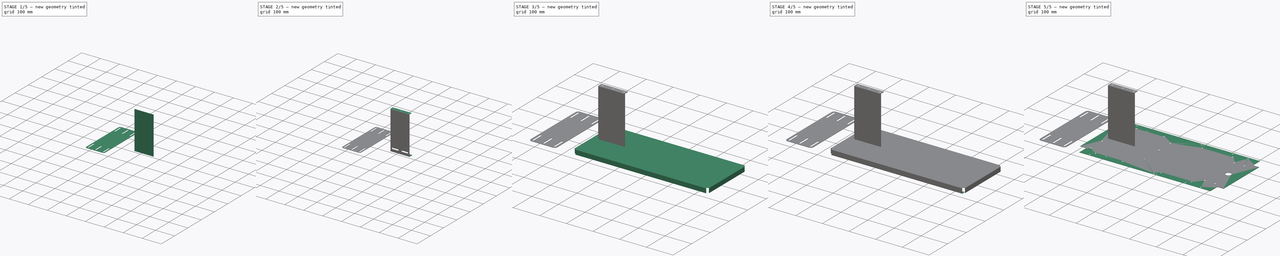
[diagram: build sequence overview — one tinted view per stage of 5, left to right]
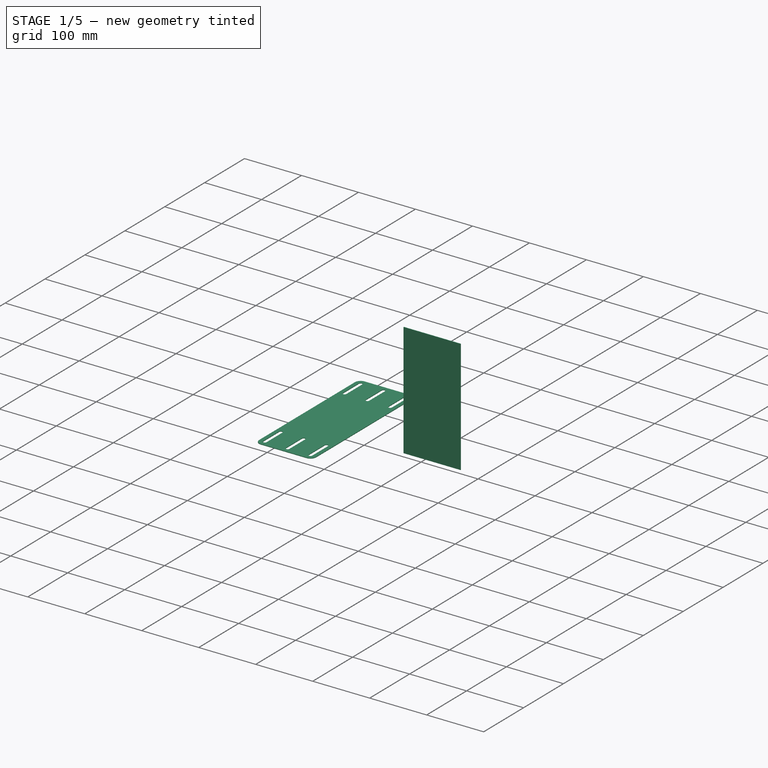
[diagram: stage 1 of 5 — iso view after this stage's code; geometry added in this stage tinted green]
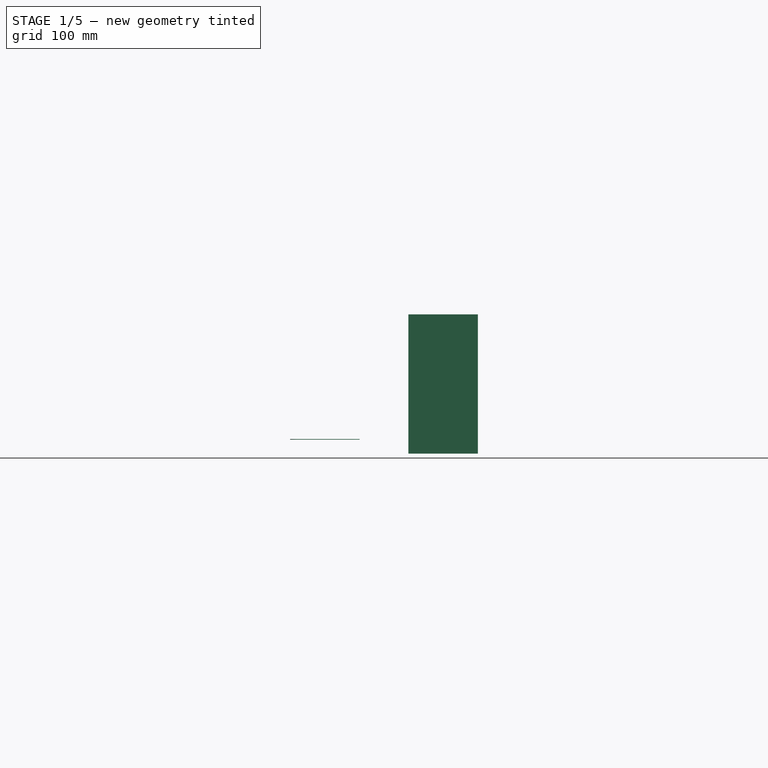
[diagram: stage 1 of 5 — front view after this stage's code; geometry added in this stage tinted green]
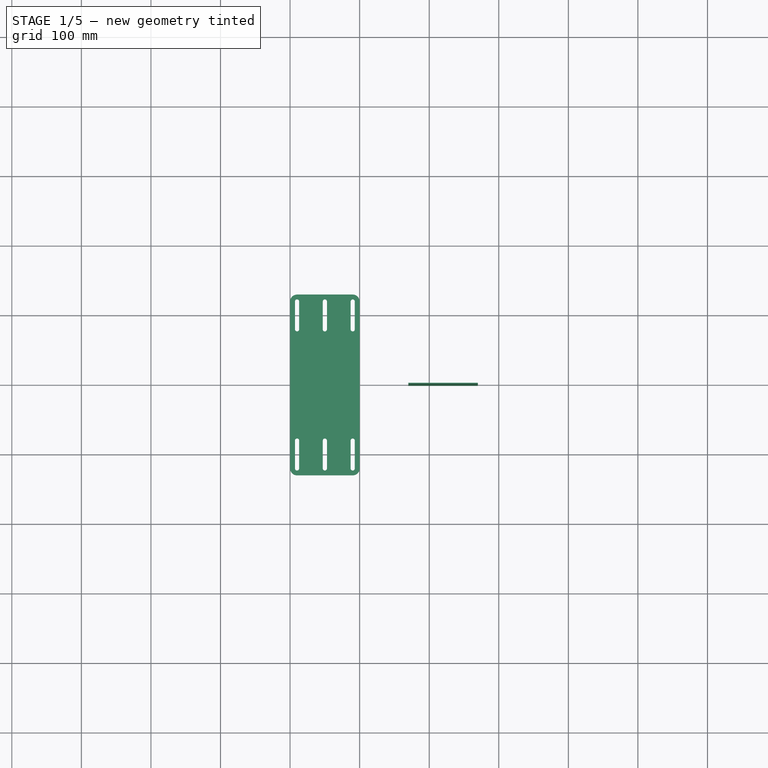
[diagram: stage 1 of 5 — top view after this stage's code; geometry added in this stage tinted green]
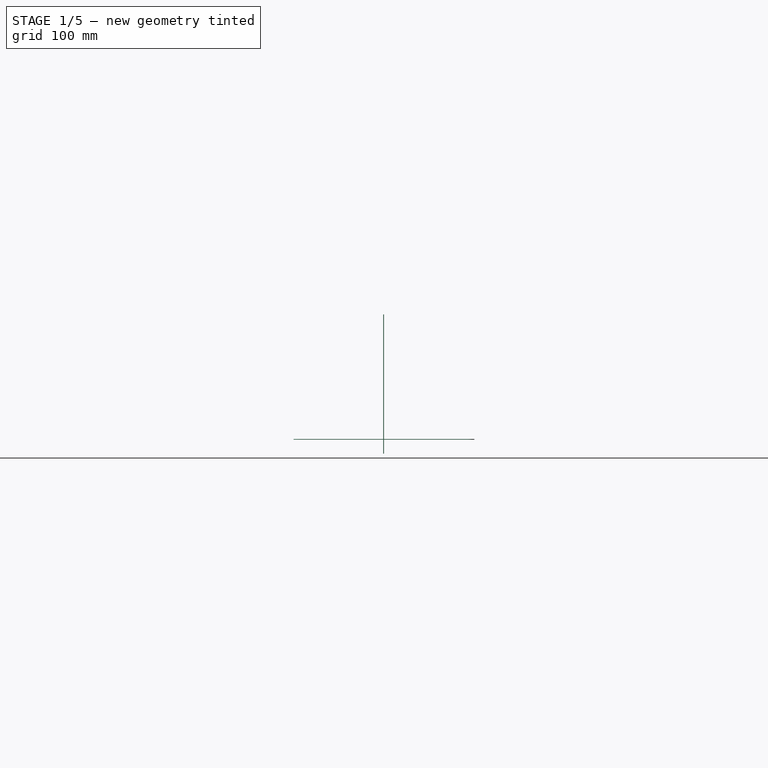
[diagram: stage 1 of 5 — right view after this stage's code; geometry added in this stage tinted green]
FCSTD DOCUMENT  (FreeCAD 1.0R38641 +678 (Git))
Label: support-mcdu-throttle
License: All rights reserved
LicenseURL: https://en.wikipedia.org/wiki/All_rights_reserved
objects: Sketcher::SketchObject×11, PartDesign::FeaturePython×9, PartDesign::Pocket×6, PartDesign::Body×3, PartDesign::Pad×2, Part::FeaturePython×1, PartDesign::Fillet×1
note: 71 computed .brp shape members not serialized (recipe doc carries the construction recipe); baked Part::Feature solids carry a one-line shape summary decoded from their .brp

FEATURE [Sketcher::SketchObject] Unfold_Sketch
  ArcFitTolerance = 1e-06
  FullyConstrained = false
  MakeInternals = false
  sketch-geometry (40):
    g0: LineSegment StartX=513.199 StartY=264.796 StartZ=0 EndX=513.199 EndY=252.796 EndZ=0
    g1: LineSegment StartX=513.199 StartY=252.796 StartZ=0 EndX=513.199 EndY=250.597 EndZ=0
    g2: LineSegment StartX=513.199 StartY=250.597 StartZ=0 EndX=513.199 EndY=234.597 EndZ=0
    g3: LineSegment StartX=513.199 StartY=234.597 StartZ=0 EndX=513.199 EndY=232.398 EndZ=0
    g4: LineSegment StartX=513.199 StartY=232.398 StartZ=0 EndX=513.494 EndY=232.398 EndZ=0
    g5: ArcOfCircle CenterX=519.377 CenterY=233.576 CenterZ=0 NormalX=0 NormalY=0 NormalZ=1 AngleXU=-2.94396 Radius=6 StartAngle=0 EndAngle=1.17553
    g6: LineSegment StartX=518.199 StartY=227.693 StartZ=0 EndX=518.199 EndY=227.398 EndZ=0
    g7: LineSegment StartX=518.199 StartY=227.398 StartZ=0 EndX=520.398 EndY=227.398 EndZ=0
    g8: LineSegment StartX=520.398 StartY=227.398 StartZ=0 EndX=536.398 EndY=227.398 EndZ=0
    g9: LineSegment StartX=536.398 StartY=227.398 StartZ=0 EndX=536.398 EndY=37.3982 EndZ=0
    g10: LineSegment StartX=536.398 StartY=37.3982 StartZ=0 EndX=520.398 EndY=37.3982 EndZ=0
    g11: LineSegment StartX=520.398 StartY=37.3982 StartZ=0 EndX=518.199 EndY=37.3982 EndZ=0
    g12: LineSegment StartX=518.199 StartY=37.3982 StartZ=0 EndX=518.199 EndY=37.1033 EndZ=0
    g13: ArcOfCircle CenterX=519.377 CenterY=31.2201 CenterZ=0 NormalX=0 NormalY=0 NormalZ=1 AngleXU=1.76843 Radius=6 StartAngle=0 EndAngle=1.17553
    g14: LineSegment StartX=513.494 StartY=32.3982 StartZ=0 EndX=513.199 EndY=32.3982 EndZ=0
    g15: LineSegment StartX=513.199 StartY=32.3982 StartZ=0 EndX=513.199 EndY=30.1991 EndZ=0
    g16: LineSegment StartX=513.199 StartY=30.1991 StartZ=0 EndX=513.199 EndY=14.1991 EndZ=0
    g17: LineSegment StartX=513.199 StartY=14.1991 StartZ=0 EndX=513.199 EndY=12 EndZ=0
    g18: LineSegment StartX=513.199 StartY=12 StartZ=0 EndX=513.199 EndY=3.6e-15 EndZ=0
    g19: LineSegment StartX=513.199 StartY=3.6e-15 StartZ=0 EndX=23.1991 EndY=3.6e-15 EndZ=0
    g20: LineSegment StartX=23.1991 StartY=3.6e-15 StartZ=0 EndX=23.1991 EndY=12 EndZ=0
    g21: LineSegment StartX=23.1991 StartY=12 StartZ=0 EndX=23.1991 EndY=14.1991 EndZ=0
    g22: LineSegment StartX=23.1991 StartY=14.1991 StartZ=0 EndX=23.1991 EndY=30.1991 EndZ=0
    g23: LineSegment StartX=23.1991 StartY=30.1991 StartZ=0 EndX=23.1991 EndY=32.3982 EndZ=0
    g24: LineSegment StartX=23.1991 StartY=32.3982 StartZ=0 EndX=22.9042 EndY=32.3982 EndZ=0
    g25: ArcOfCircle CenterX=17.021 CenterY=31.2201 CenterZ=0 NormalX=0 NormalY=0 NormalZ=1 AngleXU=0.197634 Radius=6 StartAngle=0 EndAngle=1.17553
    g26: LineSegment StartX=18.1991 StartY=37.1033 StartZ=0 EndX=18.1991 EndY=37.3982 EndZ=0
    g27: LineSegment StartX=18.1991 StartY=37.3982 StartZ=0 EndX=16 EndY=37.3982 EndZ=0
    g28: LineSegment StartX=16 StartY=37.3982 StartZ=0 EndX=-2.13e-14 EndY=37.3982 EndZ=0
    g29: LineSegment StartX=-2.13e-14 StartY=37.3982 StartZ=0 EndX=1.78e-14 EndY=227.398 EndZ=0
    g30: LineSegment StartX=1.78e-14 StartY=227.398 StartZ=0 EndX=16 EndY=227.398 EndZ=0
    g31: LineSegment StartX=16 StartY=227.398 StartZ=0 EndX=18.1991 EndY=227.398 EndZ=0
    g32: LineSegment StartX=18.1991 StartY=227.398 StartZ=0 EndX=18.1991 EndY=227.693 EndZ=0
    g33: ArcOfCircle CenterX=17.021 CenterY=233.576 CenterZ=0 NormalX=0 NormalY=0 NormalZ=1 AngleXU=-1.37316 Radius=6 StartAngle=0 EndAngle=1.17553
    g34: LineSegment StartX=22.9042 StartY=232.398 StartZ=0 EndX=23.1991 EndY=232.398 EndZ=0
    g35: LineSegment StartX=23.1991 StartY=232.398 StartZ=0 EndX=23.1991 EndY=234.597 EndZ=0
    g36: LineSegment StartX=23.1991 StartY=234.597 StartZ=0 EndX=23.1991 EndY=250.597 EndZ=0
    g37: LineSegment StartX=23.1991 StartY=250.597 StartZ=0 EndX=23.1991 EndY=252.796 EndZ=0
    g38: LineSegment StartX=23.1991 StartY=252.796 StartZ=0 EndX=23.1991 EndY=264.796 EndZ=0
    g39: LineSegment StartX=23.1991 StartY=264.796 StartZ=0 EndX=513.199 EndY=264.796 EndZ=0
FEATURE [Sketcher::SketchObject] Unfold_Sketch_Bends
  ArcFitTolerance = 1e-06
  FullyConstrained = false
  MakeInternals = false
  sketch-geometry (6):
    g0: LineSegment StartX=17.0996 StartY=227.398 StartZ=0 EndX=17.0996 EndY=37.3982 EndZ=0
    g1: LineSegment StartX=23.1991 StartY=31.2987 StartZ=0 EndX=513.199 EndY=31.2987 EndZ=0
    g2: LineSegment StartX=513.199 StartY=233.498 StartZ=0 EndX=23.1991 EndY=233.498 EndZ=0
    g3: LineSegment StartX=519.299 StartY=37.3982 StartZ=0 EndX=519.299 EndY=227.398 EndZ=0
    g4: LineSegment StartX=23.1991 StartY=13.0996 StartZ=0 EndX=513.199 EndY=13.0996 EndZ=0
    g5: LineSegment StartX=513.199 StartY=251.697 StartZ=0 EndX=23.1991 EndY=251.697 EndZ=0
FEATURE [Sketcher::SketchObject] Unfold_Sketch_Holes
  ArcFitTolerance = 1e-06
  FullyConstrained = false
  MakeInternals = false
  sketch-geometry (31):
    g0: Circle CenterX=488.199 CenterY=132.398 CenterZ=0 NormalX=0 NormalY=0 NormalZ=1 AngleXU=0 Radius=10
    g1: Circle CenterX=33.1991 CenterY=107.398 CenterZ=0 NormalX=0 NormalY=0 NormalZ=1 AngleXU=0 Radius=3.2
    g2: Circle CenterX=33.1991 CenterY=47.3982 CenterZ=0 NormalX=0 NormalY=0 NormalZ=1 AngleXU=0 Radius=3.2
    g3: Circle CenterX=493.199 CenterY=53.8982 CenterZ=0 NormalX=0 NormalY=0 NormalZ=1 AngleXU=0 Radius=3.2
    g4: Circle CenterX=455.199 CenterY=53.8982 CenterZ=0 NormalX=0 NormalY=0 NormalZ=1 AngleXU=0 Radius=3.2
    g5: Circle CenterX=213.199 CenterY=74.3982 CenterZ=0 NormalX=0 NormalY=0 NormalZ=1 AngleXU=0 Radius=3.2
    g6: Circle CenterX=33.1991 CenterY=187.398 CenterZ=0 NormalX=0 NormalY=0 NormalZ=1 AngleXU=0 Radius=3.2
    g7: Circle CenterX=493.199 CenterY=210.898 CenterZ=0 NormalX=0 NormalY=0 NormalZ=1 AngleXU=0 Radius=3.2
    g8: Circle CenterX=455.199 CenterY=210.898 CenterZ=0 NormalX=0 NormalY=0 NormalZ=1 AngleXU=0 Radius=3.2
    g9: Circle CenterX=213.199 CenterY=214.398 CenterZ=0 NormalX=0 NormalY=0 NormalZ=1 AngleXU=0 Radius=3.2
    g10: Circle CenterX=213.199 CenterY=154.398 CenterZ=0 NormalX=0 NormalY=0 NormalZ=1 AngleXU=0 Radius=3.2
    g11: Circle CenterX=473.199 CenterY=258.796 CenterZ=0 NormalX=0 NormalY=0 NormalZ=1 AngleXU=0 Radius=3
    g12: Circle CenterX=415.199 CenterY=258.796 CenterZ=0 NormalX=0 NormalY=0 NormalZ=1 AngleXU=0 Radius=3
    g13: Circle CenterX=308.199 CenterY=258.796 CenterZ=0 NormalX=0 NormalY=0 NormalZ=1 AngleXU=0 Radius=3
    g14: Circle CenterX=298.199 CenterY=258.796 CenterZ=0 NormalX=0 NormalY=0 NormalZ=1 AngleXU=0 Radius=3
    g15: Circle CenterX=58.1991 CenterY=258.796 CenterZ=0 NormalX=0 NormalY=0 NormalZ=1 AngleXU=0 Radius=3
    g16: Circle CenterX=473.199 CenterY=6 CenterZ=0 NormalX=0 NormalY=0 NormalZ=1 AngleXU=0 Radius=3
    g17: Circle CenterX=415.199 CenterY=6 CenterZ=0 NormalX=0 NormalY=0 NormalZ=1 AngleXU=0 Radius=3
    g18: Circle CenterX=308.199 CenterY=6 CenterZ=0 NormalX=0 NormalY=0 NormalZ=1 AngleXU=0 Radius=3
    g19: Circle CenterX=298.199 CenterY=6 CenterZ=0 NormalX=0 NormalY=0 NormalZ=1 AngleXU=0 Radius=3
    g20: Circle CenterX=58.1991 CenterY=6 CenterZ=0 NormalX=0 NormalY=0 NormalZ=1 AngleXU=0 Radius=3
    g21: Circle CenterX=68.1991 CenterY=242.597 CenterZ=0 NormalX=0 NormalY=0 NormalZ=1 AngleXU=0 Radius=3
    g22: Circle CenterX=108.199 CenterY=242.597 CenterZ=0 NormalX=0 NormalY=0 NormalZ=1 AngleXU=0 Radius=3
    g23: Circle CenterX=169.199 CenterY=242.597 CenterZ=0 NormalX=0 NormalY=0 NormalZ=1 AngleXU=0 Radius=3
    g24: Circle CenterX=313.199 CenterY=242.597 CenterZ=0 NormalX=0 NormalY=0 NormalZ=1 AngleXU=0 Radius=3
    g25: Circle CenterX=427.199 CenterY=242.597 CenterZ=0 NormalX=0 NormalY=0 NormalZ=1 AngleXU=0 Radius=3
    g26: Circle CenterX=427.199 CenterY=22.1991 CenterZ=0 NormalX=0 NormalY=0 NormalZ=1 AngleXU=0 Radius=3
    g27: Circle CenterX=313.199 CenterY=22.1991 CenterZ=0 NormalX=0 NormalY=0 NormalZ=1 AngleXU=0 Radius=3
    g28: Circle CenterX=169.199 CenterY=22.1991 CenterZ=0 NormalX=0 NormalY=0 NormalZ=1 AngleXU=0 Radius=3
    g29: Circle CenterX=108.199 CenterY=22.1991 CenterZ=0 NormalX=0 NormalY=0 NormalZ=1 AngleXU=0 Radius=3
    g30: Circle CenterX=68.1991 CenterY=22.1991 CenterZ=0 NormalX=0 NormalY=0 NormalZ=1 AngleXU=0 Radius=3
FEATURE [Sketcher::SketchObject] Sketch003
  ArcFitTolerance = 1e-06
  AttachmentSupport = -> [XZ_Plane001]
  FullyConstrained = true
  MakeInternals = false
  MapMode = 5
  Placement = pos=(0,0,0) rot=(1,0,0;1.5708rad)
  sketch-geometry (4):
    g0: LineSegment StartX=-230 StartY=-20 StartZ=0 EndX=-130 EndY=-20 EndZ=0
    g1: LineSegment StartX=-130 StartY=-20 StartZ=0 EndX=-130 EndY=180 EndZ=0
    g2: LineSegment StartX=-130 StartY=180 StartZ=0 EndX=-230 EndY=180 EndZ=0
    g3: LineSegment StartX=-230 StartY=180 StartZ=0 EndX=-230 EndY=-20 EndZ=0
  constraints (12):
    c: Coincident(g0,g1)
    c: Coincident(g1,g2)
    c: Coincident(g2,g3)
    c: Coincident(g3,g0)
    c: Horizontal(g0)
    c: Horizontal(g2)
    c: Vertical(g1)
    c: Vertical(g3)
    c: DistanceY(g3,g3) = 200
    c: DistanceX(g0,g0) = 100
    c: DistanceY(g0,g-1) = 20
    c: DistanceX(g0,g-1) = 230
FEATURE [PartDesign::Pad] Pad
  Direction = (0,-1,2e-16)
  Length = 1
  Length2 = 10
  Placement = pos=(0,0,0) rot=(1,0,0;1.5708rad)
  Profile = -> Sketch003
  ReferenceAxis = -> Sketch003 [N_Axis]
  Refine = true
  Suppressed = false
  Type = 0
FEATURE [PartDesign::Body] Body001  label="Suspend"
  AllowCompound = false
  Group = -> [Sketch003,Pad,Bend002,Bend003,Sketch004,Pocket003,Sketch005,Pocket004]
  Origin = -> Origin001
  Placement = pos=(0,-117,0) rot=(0,0,1;0rad)
  Tip = -> Pocket004
FEATURE [Sketcher::SketchObject] Sketch006
  ArcFitTolerance = 1e-06
  AttachmentSupport = -> [XY_Plane002]
  FullyConstrained = true
  MakeInternals = false
  MapMode = 5
  sketch-geometry (4):
    g0: LineSegment StartX=-400 StartY=-130 StartZ=0 EndX=-300 EndY=-130 EndZ=0
    g1: LineSegment StartX=-300 StartY=-130 StartZ=0 EndX=-300 EndY=130 EndZ=0
    g2: LineSegment StartX=-300 StartY=130 StartZ=0 EndX=-400 EndY=130 EndZ=0
    g3: LineSegment StartX=-400 StartY=130 StartZ=0 EndX=-400 EndY=-130 EndZ=0
  constraints (11):
    c: Coincident(g0,g1)
    c: Coincident(g1,g2)
    c: Coincident(g2,g3)
    c: Coincident(g3,g0)
    c: Horizontal(g0)
    c: Horizontal(g2)
    c: Vertical(g1)
    c: DistanceX(g0,g0) = 100
    c: DistanceY(g3,g3) = 260
    c: Symmetric(g0,g2,g-1)
    c: DistanceX(g0,g-1) = 300
FEATURE [PartDesign::Pad] Pad001
  Direction = (0,0,1)
  Length = 1
  Length2 = 10
  Profile = -> Sketch006
  ReferenceAxis = -> Sketch006 [N_Axis]
  Refine = true
  Suppressed = false
  Type = 0
FEATURE [Sketcher::SketchObject] Sketch007
  ArcFitTolerance = 1e-06
  AttachmentSupport = -> [Pad001]
  ExternalGeometry = -> [Pad001]
  FullyConstrained = true
  MakeInternals = false
  MapMode = 5
  Placement = pos=(0,0,1) rot=(0,0,1;0rad)
  sketch-geometry (29):
    g0: LineSegment [constr] StartX=-400 StartY=-120 StartZ=0 EndX=-300 EndY=-120 EndZ=0
    g1: LineSegment [constr] StartX=-400 StartY=-80 StartZ=0 EndX=-300 EndY=-80 EndZ=0
    g2: LineSegment [constr] StartX=-350 StartY=130 StartZ=0 EndX=-350 EndY=-130 EndZ=0
    g3: ArcOfCircle CenterX=-350 CenterY=-80 CenterZ=0 NormalX=0 NormalY=0 NormalZ=1 AngleXU=0 Radius=3 StartAngle=-9e-16 EndAngle=3.14159
    g4: ArcOfCircle CenterX=-350 CenterY=-120 CenterZ=0 NormalX=0 NormalY=0 NormalZ=1 AngleXU=0 Radius=3 StartAngle=3.14159 EndAngle=6.28319
    g5: LineSegment StartX=-347 StartY=-80 StartZ=0 EndX=-347 EndY=-120 EndZ=0
    g6: LineSegment StartX=-353 StartY=-80 StartZ=0 EndX=-353 EndY=-120 EndZ=0
    g7: ArcOfCircle CenterX=-390 CenterY=-80 CenterZ=0 NormalX=0 NormalY=0 NormalZ=1 AngleXU=0 Radius=3 StartAngle=-1.8e-15 EndAngle=3.14159
    g8: ArcOfCircle CenterX=-390 CenterY=-120 CenterZ=0 NormalX=0 NormalY=0 NormalZ=1 AngleXU=0 Radius=3 StartAngle=3.14159 EndAngle=6.28319
    g9: LineSegment StartX=-387 StartY=-80 StartZ=0 EndX=-387 EndY=-120 EndZ=0
    g10: LineSegment StartX=-393 StartY=-80 StartZ=0 EndX=-393 EndY=-120 EndZ=0
    g11: ArcOfCircle CenterX=-310 CenterY=-80 CenterZ=0 NormalX=0 NormalY=0 NormalZ=1 AngleXU=0 Radius=3 StartAngle=-1.8e-15 EndAngle=3.14159
    g12: ArcOfCircle CenterX=-310 CenterY=-120 CenterZ=0 NormalX=0 NormalY=0 NormalZ=1 AngleXU=0 Radius=3 StartAngle=3.14159 EndAngle=6.28319
    g13: LineSegment StartX=-307 StartY=-80 StartZ=0 EndX=-307 EndY=-120 EndZ=0
    g14: LineSegment StartX=-313 StartY=-80 StartZ=0 EndX=-313 EndY=-120 EndZ=0
    g15: LineSegment [constr] StartX=-400 StartY=120 StartZ=0 EndX=-300 EndY=120 EndZ=0
    g16: LineSegment [constr] StartX=-400 StartY=80 StartZ=0 EndX=-300 EndY=80 EndZ=0
    g17: ArcOfCircle CenterX=-350 CenterY=120 CenterZ=0 NormalX=0 NormalY=0 NormalZ=1 AngleXU=0 Radius=3 StartAngle=-1.8e-15 EndAngle=3.14159
    g18: ArcOfCircle CenterX=-350 CenterY=80 CenterZ=0 NormalX=0 NormalY=0 NormalZ=1 AngleXU=0 Radius=3 StartAngle=3.14159 EndAngle=6.28319
    g19: LineSegment StartX=-347 StartY=120 StartZ=0 EndX=-347 EndY=80 EndZ=0
    g20: LineSegment StartX=-353 StartY=120 StartZ=0 EndX=-353 EndY=80 EndZ=0
    g21: ArcOfCircle CenterX=-390 CenterY=120 CenterZ=0 NormalX=0 NormalY=0 NormalZ=1 AngleXU=0 Radius=3 StartAngle=9e-16 EndAngle=3.14159
    g22: ArcOfCircle CenterX=-390 CenterY=80 CenterZ=0 NormalX=0 NormalY=0 NormalZ=1 AngleXU=0 Radius=3 StartAngle=3.14159 EndAngle=6.28319
    g23: LineSegment StartX=-387 StartY=120 StartZ=0 EndX=-387 EndY=80 EndZ=0
    g24: LineSegment StartX=-393 StartY=120 StartZ=0 EndX=-393 EndY=80 EndZ=0
    g25: ArcOfCircle CenterX=-310 CenterY=120 CenterZ=0 NormalX=0 NormalY=0 NormalZ=1 AngleXU=0 Radius=3 StartAngle=-1.8e-15 EndAngle=3.14159
    g26: ArcOfCircle CenterX=-310 CenterY=80 CenterZ=0 NormalX=0 NormalY=0 NormalZ=1 AngleXU=0 Radius=3 StartAngle=3.14159 EndAngle=6.28319
    g27: LineSegment StartX=-307 StartY=120 StartZ=0 EndX=-307 EndY=80 EndZ=0
    g28: LineSegment StartX=-313 StartY=120 StartZ=0 EndX=-313 EndY=80 EndZ=0
  constraints (74):
    c: PointOnObject(g0,g-4)
    c: PointOnObject(g0,g-5)
    c: Horizontal(g0)
    c: PointOnObject(g1,g-4)
    c: PointOnObject(g1,g-5)
    c: Horizontal(g1)
    c: Symmetric(g-3,g-3,g2)
    c: Symmetric(g-6,g-6,g2)
    c: DistanceY(g-6,g0) = 10
    c: DistanceY(g-6,g1) = 50
    c: Tangent(g3,g5) = 1.5708
    c: Tangent(g3,g6) = -1.5708
    c: Tangent(g4,g5) = 1.5708
    c: Tangent(g4,g6) = -1.5708
    c: Equal(g3,g4)
    c: Vertical(g6)
    c: DistanceX(g4,g4) = 6
    c: PointOnObject(g3,g2)
    c: PointOnObject(g3,g1)
    c: PointOnObject(g4,g0)
    c: Tangent(g7,g9) = 1.5708
    c: Tangent(g7,g10) = -1.5708
    c: Tangent(g8,g9) = 1.5708
    c: Tangent(g8,g10) = -1.5708
    c: Equal(g7,g8)
    c: PointOnObject(g7,g1)
    c: PointOnObject(g8,g0)
    c: Vertical(g9)
    c: Tangent(g11,g13) = 1.5708
    c: Tangent(g11,g14) = -1.5708
    c: Tangent(g12,g13) = 1.5708
    c: Tangent(g12,g14) = -1.5708
    c: Equal(g11,g12)
    c: PointOnObject(g11,g1)
    c: PointOnObject(g12,g0)
    c: Vertical(g13)
    c: DistanceX(g8,g8) = 6
    c: DistanceX(g0,g8) = 10
    c: DistanceX(g12,g12) = 6
    c: DistanceX(g12,g0) = 10
    c: Symmetric(g0,g15,g-1)
    c: Symmetric(g0,g15,g-1)
    c: Symmetric(g1,g16,g-1)
    c: Symmetric(g1,g16,g-1)
    c: Tangent(g17,g19) = 1.5708
    c: Tangent(g17,g20) = -1.5708
    c: Tangent(g18,g19) = 1.5708
    c: Tangent(g18,g20) = -1.5708
    c: Equal(g17,g18)
    c: Vertical(g20)
    c: PointOnObject(g17,g2)
    c: PointOnObject(g18,g16)
    c: PointOnObject(g17,g15)
    c: DistanceX(g18,g18) = 6
    c: Tangent(g21,g23) = 1.5708
    c: Tangent(g21,g24) = -1.5708
    c: Tangent(g22,g23) = 1.5708
    c: Tangent(g22,g24) = -1.5708
    c: Equal(g21,g22)
    c: PointOnObject(g21,g15)
    c: PointOnObject(g22,g16)
    c: Vertical(g23)
    c: DistanceX(g22,g22) = 6
    c: DistanceX(g15,g21) = 10
    c: Tangent(g25,g27) = 1.5708
    c: Tangent(g25,g28) = -1.5708
    c: Tangent(g26,g27) = 1.5708
    c: Tangent(g26,g28) = -1.5708
    c: Equal(g25,g26)
    c: PointOnObject(g25,g15)
    c: PointOnObject(g26,g16)
    c: Vertical(g27)
    c: DistanceX(g26,g26) = 6
    c: DistanceX(g25,g15) = 10
FEATURE [PartDesign::Pocket] Pocket005
  BaseFeature = -> Pad001
  Direction = (0,0,-1)
  Length = 5
  Length2 = 5
  Profile = -> Sketch007
  ReferenceAxis = -> Sketch007 [N_Axis]
  Refine = true
  Suppressed = false
  Type = 0
FEATURE [PartDesign::Fillet] Fillet
  Base = -> Pocket005 [Edge5,Edge1,Edge2,Edge8]
  BaseFeature = -> Pocket005
  Radius = 10
  Refine = true
  SupportTransform = false
  Suppressed = false
  UseAllEdges = false
FEATURE [PartDesign::Body] Body002  label="Bottom"
  AllowCompound = false
  Group = -> [Sketch006,Pad001,Sketch007,Pocket005,Fillet]
  Origin = -> Origin002
  Tip = -> Fillet
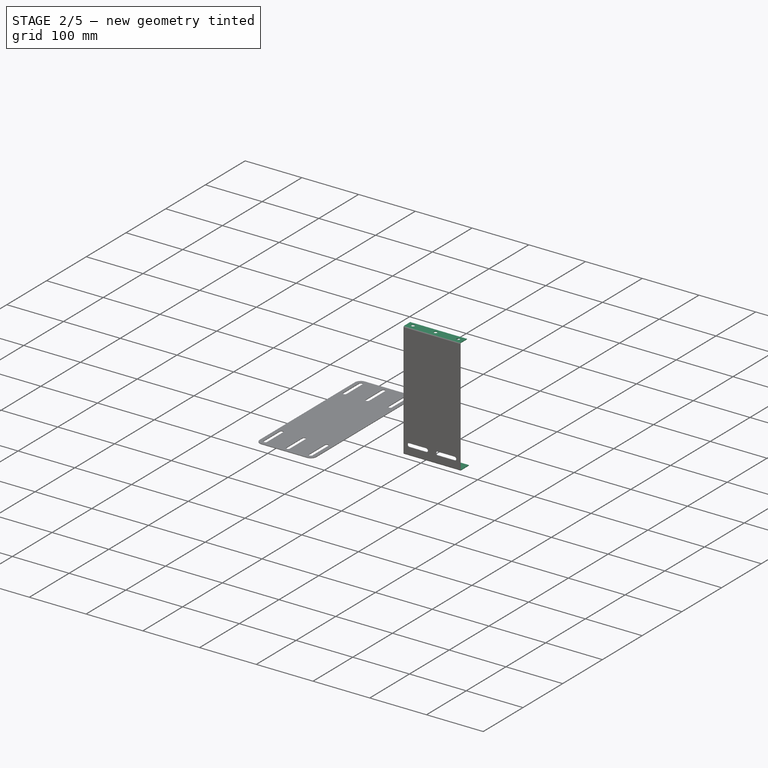
[diagram: stage 2 of 5 — iso view after this stage's code; geometry added in this stage tinted green]
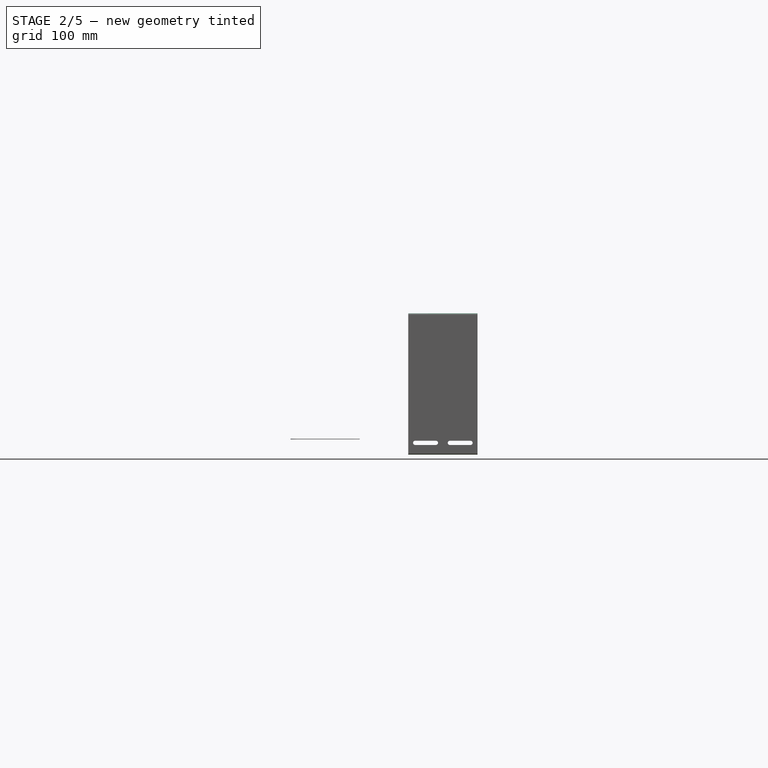
[diagram: stage 2 of 5 — front view after this stage's code; geometry added in this stage tinted green]
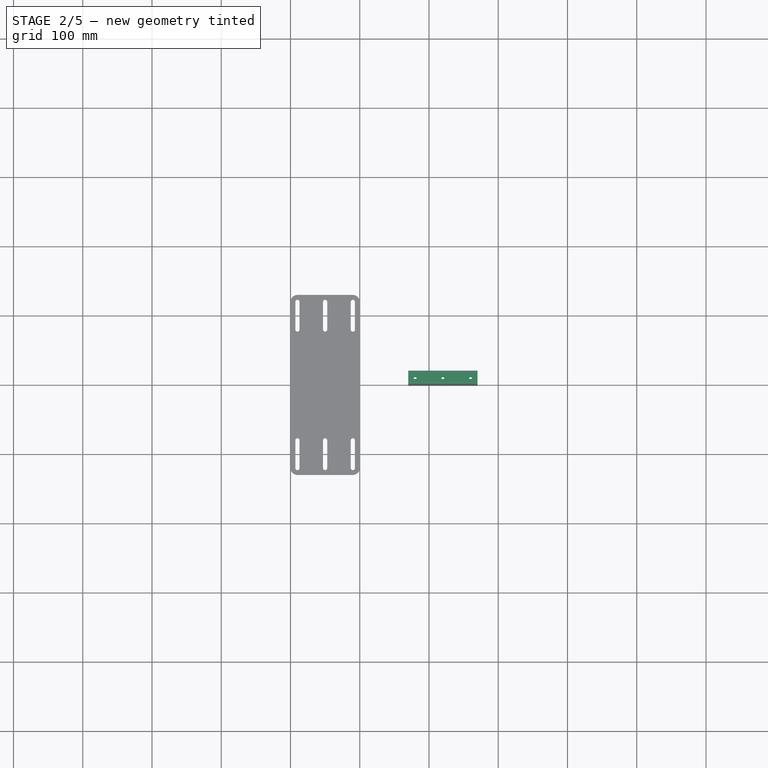
[diagram: stage 2 of 5 — top view after this stage's code; geometry added in this stage tinted green]
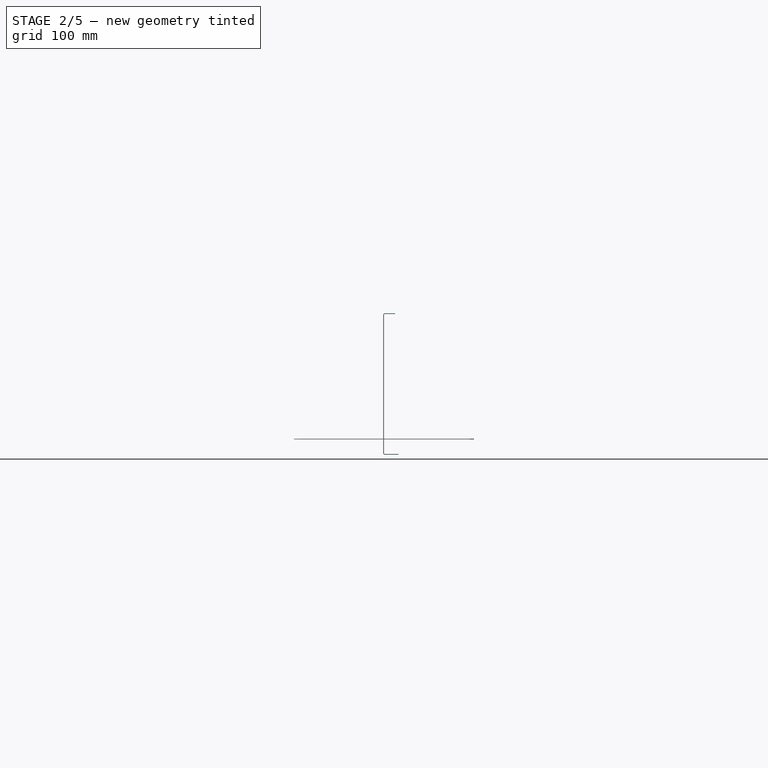
[diagram: stage 2 of 5 — right view after this stage's code; geometry added in this stage tinted green]
FEATURE [PartDesign::FeaturePython] Bend002  # WARN: FeaturePython — macro-defined, semantics opaque (R4)
  AutoMiter = false
  BaseFeature = -> Pad
  BendType = 0
  LengthList = [15]
  LengthSpec = 0
  NonperforationMaxLength = 5
  OffsetType = 1
  OffsetTypeOffset = 0
  Perforate = false
  PerforationAngle = 0
  PerforationInitialLength = 5
  PerforationMaxLength = 5
  RelativeAngleToRef = 0
  ReliefFactor = 0.7
  SupplAngleRef = false
  Suppressed = false
  UseReliefFactor = false
  angle = 90
  baseObject = -> Pad [Edge9]
  bendAList = [90]
  extend1 = 0
  extend2 = 0
  gap1 = 0
  gap2 = 0
  invert = false
  kfactor = 0.5
  length = 15
  maxExtendDist = 5
  minGap = 0.2
  minReliefGap = 1
  miterangle1 = 0
  miterangle2 = 0
  offset = 0
  radius = 1
  reliefType = 0
  reliefd = 1
  reliefw = 0.8
  sketchflip = false
  sketchinvert = false
  unfold = false
FEATURE [PartDesign::FeaturePython] Bend003  # WARN: FeaturePython — macro-defined, semantics opaque (R4)
  AutoMiter = false
  BaseFeature = -> Bend002
  BendType = 0
  LengthList = [20]
  LengthSpec = 0
  NonperforationMaxLength = 5
  OffsetType = 1
  OffsetTypeOffset = 0
  Perforate = false
  PerforationAngle = 0
  PerforationInitialLength = 5
  PerforationMaxLength = 5
  RelativeAngleToRef = 0
  ReliefFactor = 0.7
  SupplAngleRef = false
  Suppressed = false
  UseReliefFactor = false
  angle = 90
  baseObject = -> Bend002 [Edge3]
  bendAList = [90]
  extend1 = 0
  extend2 = 0
  gap1 = 0
  gap2 = 0
  invert = false
  kfactor = 0.5
  length = 20
  maxExtendDist = 5
  minGap = 0.2
  minReliefGap = 1
  miterangle1 = 0
  miterangle2 = 0
  offset = 0
  radius = 1
  reliefType = 0
  reliefd = 1
  reliefw = 0.8
  sketchflip = false
  sketchinvert = false
  unfold = false
FEATURE [Sketcher::SketchObject] Sketch004
  ArcFitTolerance = 1e-06
  AttachmentSupport = -> [Bend003]
  ExternalGeometry = -> [Bend003]
  FullyConstrained = false
  MakeInternals = false
  MapMode = 5
  Placement = pos=(0,-1,0) rot=(1,0,0;1.5708rad)
  sketch-geometry (12):
    g0: LineSegment [constr] StartX=-230 StartY=-5 StartZ=0 EndX=-130 EndY=-5 EndZ=0
    g1: ArcOfCircle CenterX=-220 CenterY=-5 CenterZ=0 NormalX=0 NormalY=0 NormalZ=1 AngleXU=0 Radius=3 StartAngle=1.5708 EndAngle=4.71239
    g2: ArcOfCircle CenterX=-190 CenterY=-5.00001 CenterZ=0 NormalX=0 NormalY=0 NormalZ=1 AngleXU=0 Radius=3 StartAngle=4.71239 EndAngle=7.85398
    g3: LineSegment StartX=-220 StartY=-2 StartZ=0 EndX=-190 EndY=-2.00001 EndZ=0
    g4: LineSegment StartX=-220 StartY=-8 StartZ=0 EndX=-190 EndY=-8.00001 EndZ=0
    g5: LineSegment [constr] StartX=-180 StartY=-5 StartZ=0 EndX=-180 EndY=-20 EndZ=0
    g6: LineSegment [constr] StartX=-180 StartY=-20 StartZ=0 EndX=-130 EndY=-20 EndZ=0
    g7: LineSegment [constr] StartX=-180 StartY=-20 StartZ=0 EndX=-230 EndY=-20 EndZ=0
    g8: ArcOfCircle CenterX=-170 CenterY=-5.00001 CenterZ=0 NormalX=0 NormalY=0 NormalZ=1 AngleXU=0 Radius=3 StartAngle=1.5708 EndAngle=4.71239
    g9: LineSegment StartX=-140 StartY=-2 StartZ=0 EndX=-170 EndY=-2.00001 EndZ=0
    g10: LineSegment StartX=-140 StartY=-8 StartZ=0 EndX=-170 EndY=-8.00001 EndZ=0
    g11: ArcOfCircle CenterX=-140 CenterY=-5 CenterZ=0 NormalX=0 NormalY=0 NormalZ=1 AngleXU=0 Radius=3 StartAngle=4.71239 EndAngle=7.85398
  constraints (28):
    c: PointOnObject(g0,g-3)
    c: PointOnObject(g0,g-5)
    c: Horizontal(g0)
    c: DistanceY(g-4,g0) = 15
    c: Tangent(g1,g3) = 1.5708
    c: Tangent(g1,g4) = -1.5708
    c: Tangent(g2,g3) = 1.5708
    c: Tangent(g2,g4) = -1.5708
    c: Equal(g1,g2)
    c: PointOnObject(g1,g0)
    c: DistanceY(g1,g1) = 3
    c: DistanceX(g1,g2) = 30
    c: DistanceX(g0,g1) = 10
    c: Symmetric(g0,g0,g5)
    c: Symmetric(g-4,g-4,g5)
    c: Coincident(g6,g5)
    c: Coincident(g7,g5)
    c: Coincident(g7,g-4)
    c: Coincident(g6,g-5)
    c: Symmetric(g1,g11,g5)
    c: Symmetric(g1,g11,g5)
    c: Symmetric(g2,g8,g5)
    c: Symmetric(g2,g8,g5)
    c: Symmetric(g3,g9,g5)
    c: Symmetric(g3,g9,g5)
    c: Symmetric(g4,g10,g5)
    c: Symmetric(g4,g10,g5)
    c: Symmetric(g1,g11,g5)
FEATURE [PartDesign::Pocket] Pocket003
  BaseFeature = -> Bend003
  Direction = (0,1,-2e-16)
  Length = 5
  Length2 = 5
  Profile = -> Sketch004
  ReferenceAxis = -> Sketch004 [N_Axis]
  Refine = true
  Suppressed = false
  Type = 0
FEATURE [Sketcher::SketchObject] Sketch005
  ArcFitTolerance = 1e-06
  AttachmentSupport = -> [Pocket003]
  ExternalGeometry = -> [Pocket003]
  FullyConstrained = true
  MakeInternals = false
  MapMode = 5
  Placement = pos=(0,-2.02e-14,182) rot=(0,0,1;0rad)
  sketch-geometry (7):
    g0: LineSegment [constr] StartX=-230 StartY=8.5 StartZ=0 EndX=-130 EndY=8.5 EndZ=0
    g1: LineSegment [constr] StartX=-180 StartY=16 StartZ=0 EndX=-180 EndY=1 EndZ=0
    g2: GeomPoint [constr] X=-220 Y=8.5 Z=0
    g3: GeomPoint [constr] X=-140 Y=8.5 Z=0
    g4: Circle CenterX=-220 CenterY=8.5 CenterZ=0 NormalX=0 NormalY=0 NormalZ=1 AngleXU=0 Radius=3
    g5: Circle CenterX=-180 CenterY=8.5 CenterZ=0 NormalX=0 NormalY=0 NormalZ=1 AngleXU=0 Radius=3
    g6: Circle CenterX=-140 CenterY=8.5 CenterZ=0 NormalX=0 NormalY=0 NormalZ=1 AngleXU=0 Radius=3
  constraints (13):
    c: Symmetric(g-3,g-3,g0)
    c: Symmetric(g-6,g-6,g0)
    c: Symmetric(g-5,g-5,g1)
    c: Symmetric(g-4,g-4,g1)
    c: PointOnObject(g2,g0)
    c: Symmetric(g3,g2,g1)
    c: DistanceX(g0,g2) = 10
    c: Coincident(g4,g2)
    c: Symmetric(g0,g0,g5)
    c: Coincident(g6,g3)
    c: Equal(g5,g4)
    c: Equal(g4,g6)
    c: Diameter(g5) = 6
FEATURE [PartDesign::Pocket] Pocket004
  BaseFeature = -> Pocket003
  Direction = (0,0,-1)
  Length = 5
  Length2 = 5
  Profile = -> Sketch005
  ReferenceAxis = -> Sketch005 [N_Axis]
  Refine = true
  Suppressed = false
  Type = 1
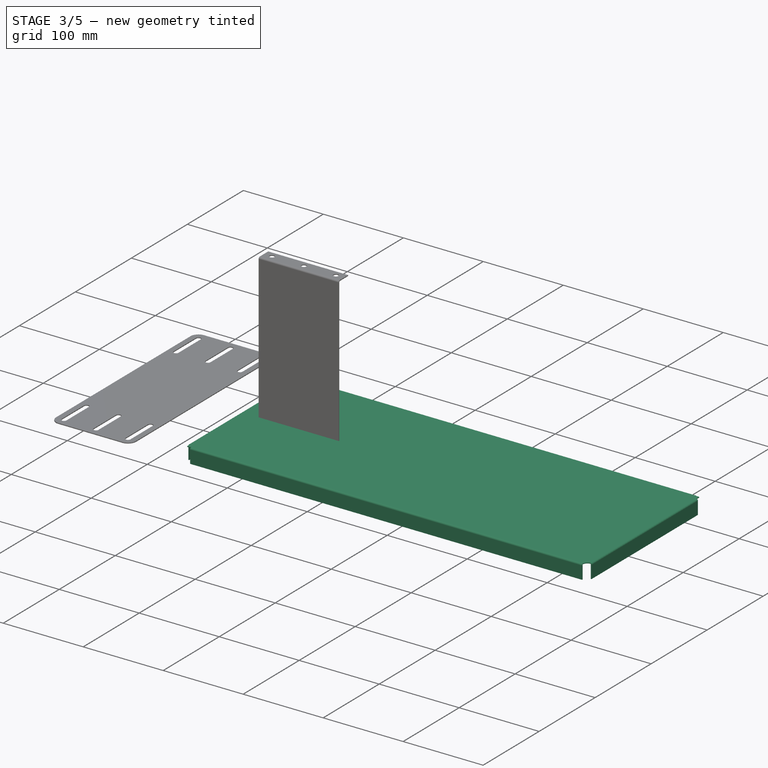
[diagram: stage 3 of 5 — iso view after this stage's code; geometry added in this stage tinted green]
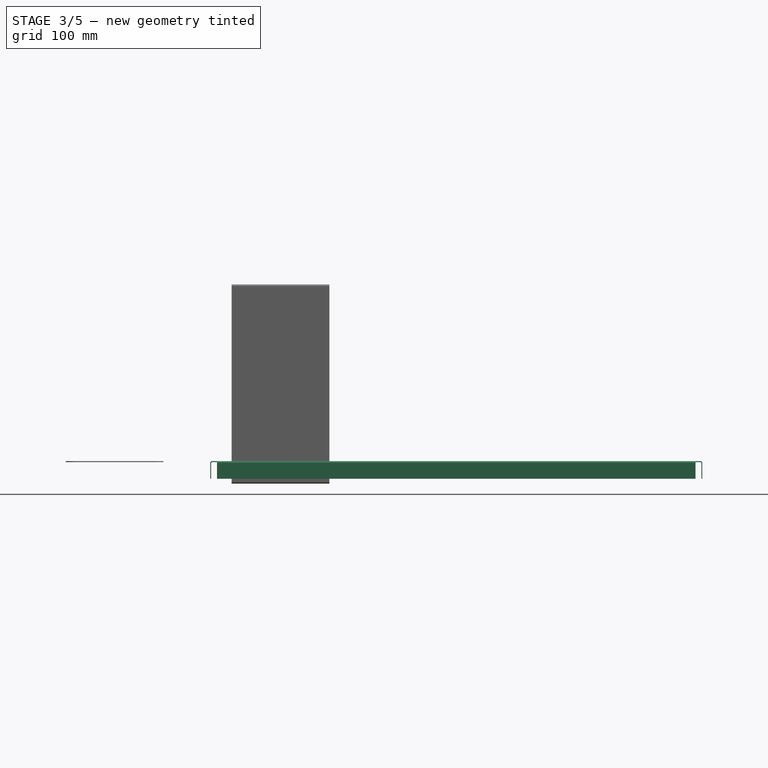
[diagram: stage 3 of 5 — front view after this stage's code; geometry added in this stage tinted green]
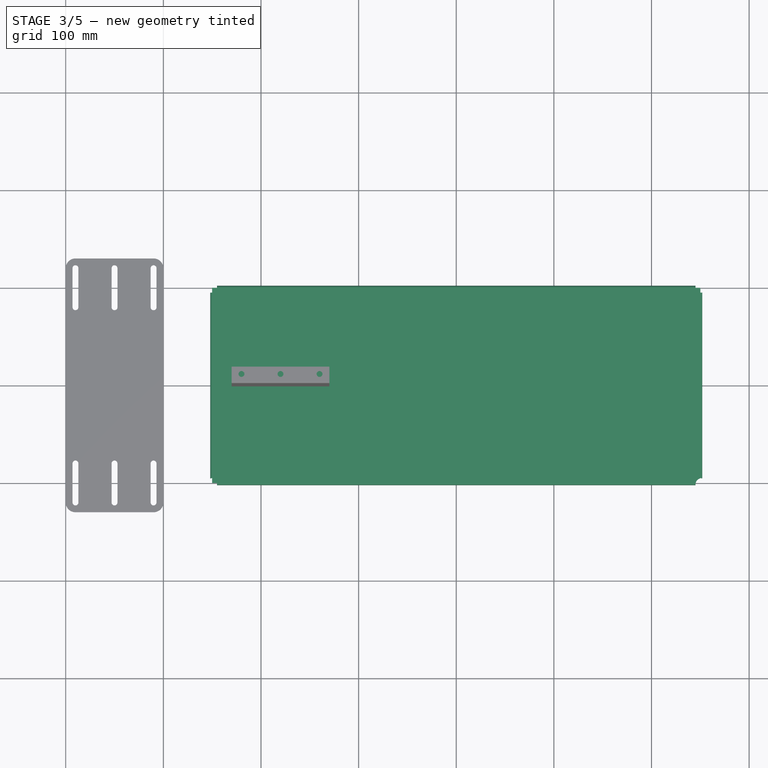
[diagram: stage 3 of 5 — top view after this stage's code; geometry added in this stage tinted green]
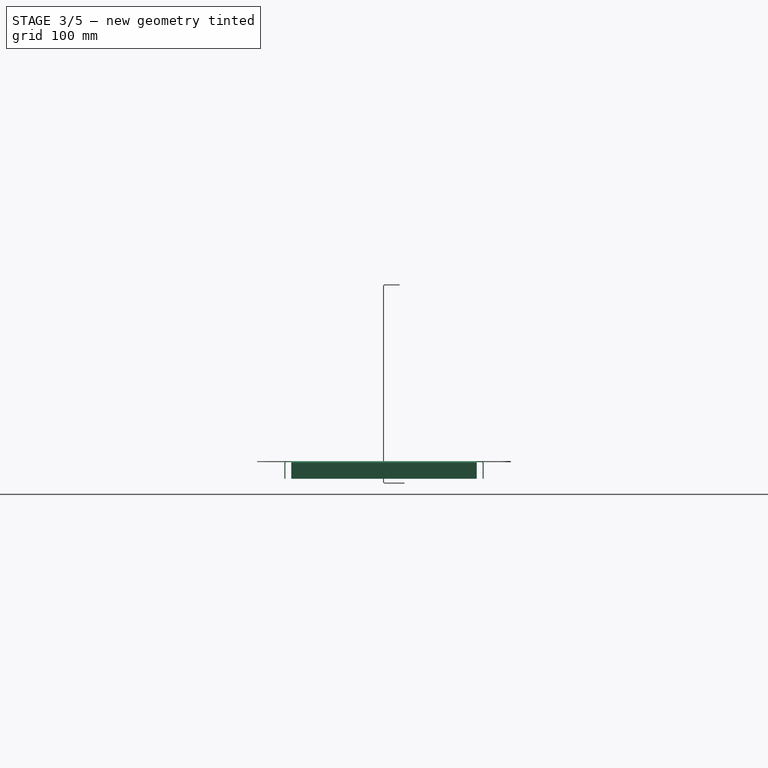
[diagram: stage 3 of 5 — right view after this stage's code; geometry added in this stage tinted green]
FEATURE [PartDesign::FeaturePython] BaseShape  # WARN: FeaturePython — macro-defined, semantics opaque (R4)
  Suppressed = false
  fillGaps = true
  flangeWidth = 5
  height = 20
  length = 500
  originLoc = 4
  radius = 1
  shapeType = 0
  thickness = 1
  width = 200
FEATURE [PartDesign::FeaturePython] Bend  # WARN: FeaturePython — macro-defined, semantics opaque (R4)
  AutoMiter = false
  BaseFeature = -> BaseShape
  BendType = 0
  LengthList = [16]
  LengthSpec = 0
  NonperforationMaxLength = 5
  OffsetType = 1
  OffsetTypeOffset = 0
  Perforate = false
  PerforationAngle = 0
  PerforationInitialLength = 5
  PerforationMaxLength = 5
  RelativeAngleToRef = 0
  ReliefFactor = 0.7
  SupplAngleRef = false
  Suppressed = false
  UseReliefFactor = false
  angle = 90
  baseObject = -> BaseShape [Edge8,Edge11,Edge9,Edge4]
  bendAList = [90]
  extend1 = 0
  extend2 = 0
  gap1 = 5
  gap2 = 5
  invert = false
  kfactor = 0.5
  length = 16
  maxExtendDist = 5
  minGap = 0.2
  minReliefGap = 1
  miterangle1 = 0
  miterangle2 = 0
  offset = 0
  radius = 1
  reliefType = 1
  reliefd = 0
  reliefw = 0.8
  sketchflip = false
  sketchinvert = false
  unfold = false
FEATURE [PartDesign::FeaturePython] CornerRelief  # WARN: FeaturePython — macro-defined, semantics opaque (R4)
  BaseFeature = -> Bend
  ReliefSketch = 0
  Size = 6
  SizeRatio = 1.5
  Suppressed = false
  XOffset = 0
  YOffset = 0
  baseObject = -> Bend [Edge14,Edge11]
  kfactor = 0.5
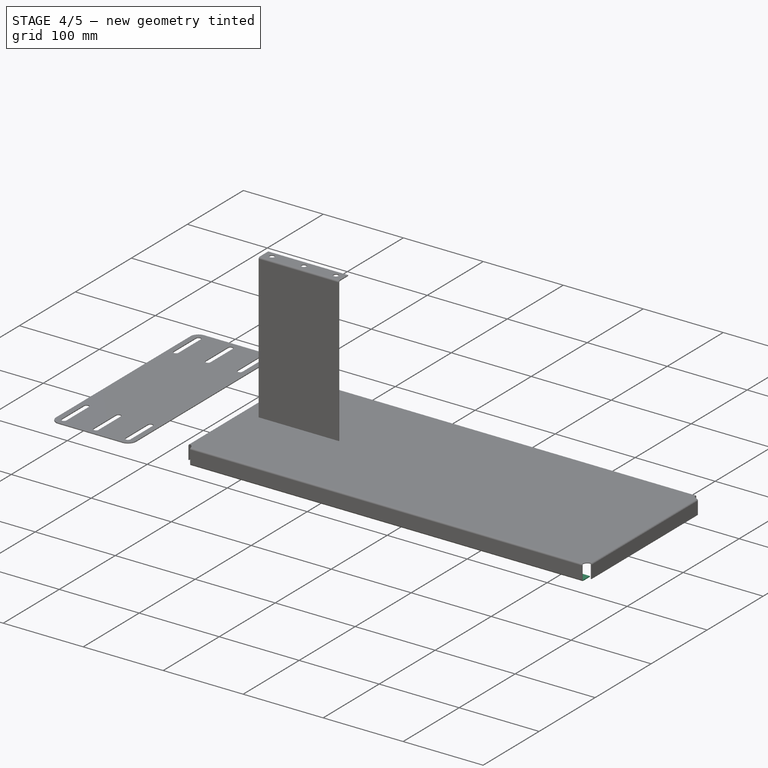
[diagram: stage 4 of 5 — iso view after this stage's code; geometry added in this stage tinted green]
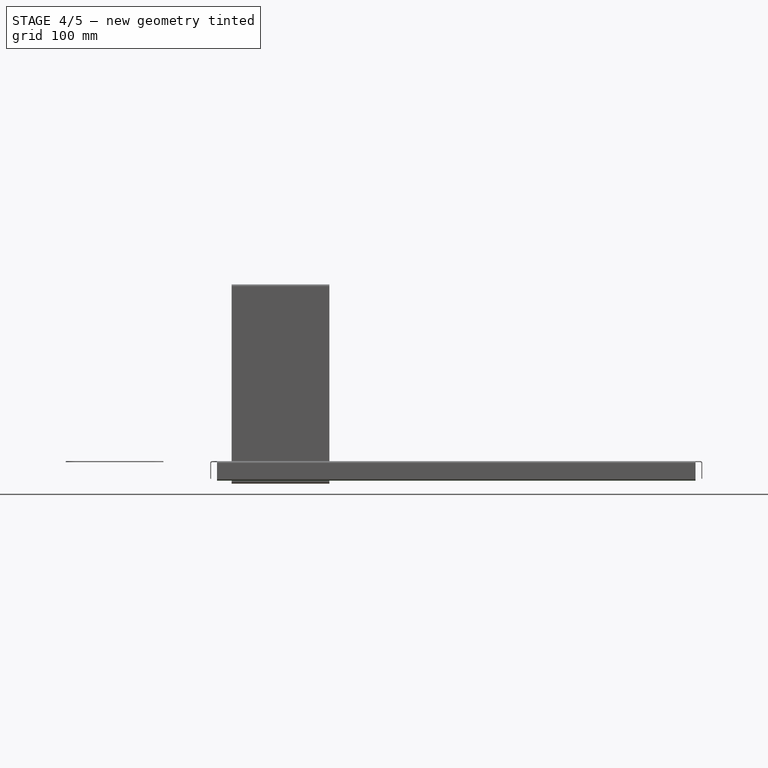
[diagram: stage 4 of 5 — front view after this stage's code; geometry added in this stage tinted green]
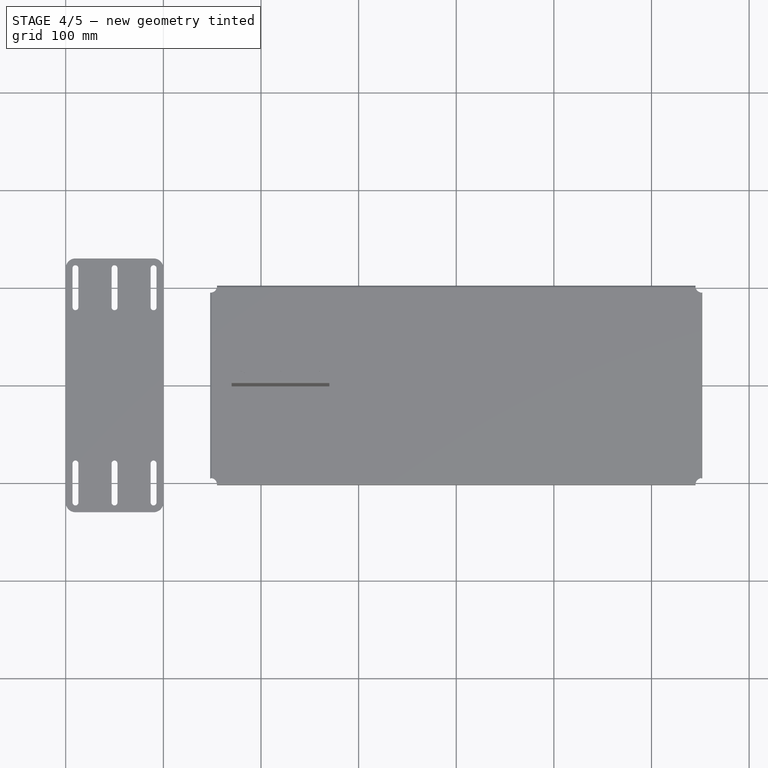
[diagram: stage 4 of 5 — top view after this stage's code; geometry added in this stage tinted green]
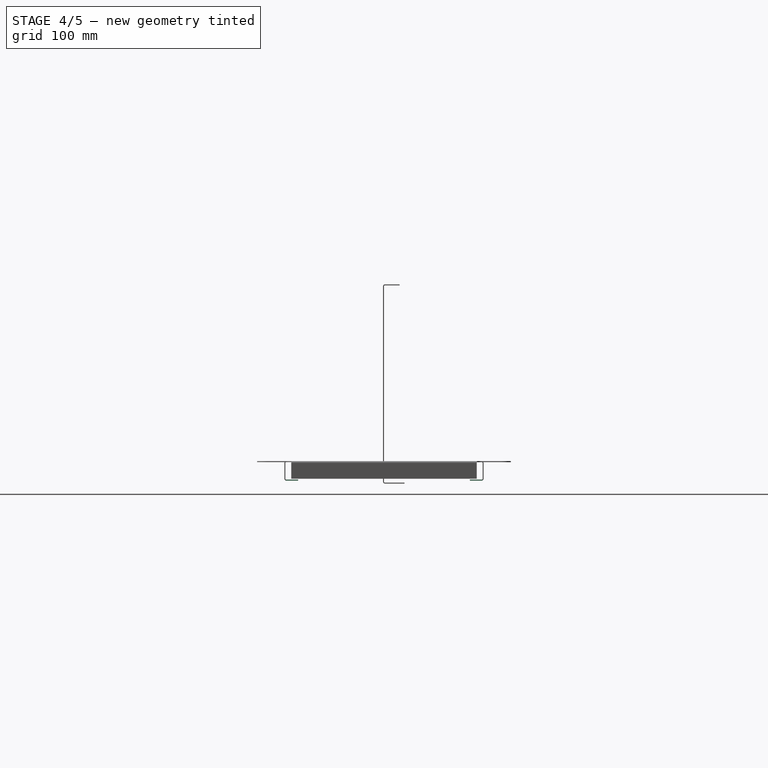
[diagram: stage 4 of 5 — right view after this stage's code; geometry added in this stage tinted green]
FEATURE [PartDesign::FeaturePython] CornerRelief001  # WARN: FeaturePython — macro-defined, semantics opaque (R4)
  BaseFeature = -> CornerRelief
  ReliefSketch = 0
  Size = 6
  SizeRatio = 1.5
  Suppressed = false
  XOffset = 0
  YOffset = 0
  baseObject = -> CornerRelief [Edge11,Edge8]
  kfactor = 0.5
FEATURE [PartDesign::FeaturePython] CornerRelief002  # WARN: FeaturePython — macro-defined, semantics opaque (R4)
  BaseFeature = -> CornerRelief001
  ReliefSketch = 0
  Size = 6
  SizeRatio = 1.5
  Suppressed = false
  XOffset = 0
  YOffset = 0
  baseObject = -> CornerRelief001 [Edge8,Edge5]
  kfactor = 0.5
FEATURE [PartDesign::FeaturePython] CornerRelief003  # WARN: FeaturePython — macro-defined, semantics opaque (R4)
  BaseFeature = -> CornerRelief002
  ReliefSketch = 0
  Size = 6
  SizeRatio = 1.5
  Suppressed = false
  XOffset = 0
  YOffset = 0
  baseObject = -> CornerRelief002 [Edge5,Edge17]
  kfactor = 0.5
FEATURE [PartDesign::FeaturePython] Bend001  # WARN: FeaturePython — macro-defined, semantics opaque (R4)
  AutoMiter = false
  BaseFeature = -> CornerRelief003
  BendType = 0
  LengthList = [12]
  LengthSpec = 0
  NonperforationMaxLength = 5
  OffsetType = 1
  OffsetTypeOffset = 0
  Perforate = false
  PerforationAngle = 0
  PerforationInitialLength = 5
  PerforationMaxLength = 5
  RelativeAngleToRef = 0
  ReliefFactor = 0.7
  SupplAngleRef = false
  Suppressed = false
  UseReliefFactor = false
  angle = 90
  baseObject = -> CornerRelief003 [Edge105,?Edge99]
  bendAList = [90]
  extend1 = 0
  extend2 = 0
  gap1 = 0
  gap2 = 0
  invert = false
  kfactor = 0.5
  length = 12
  maxExtendDist = 5
  minGap = 0.2
  minReliefGap = 1
  miterangle1 = 0
  miterangle2 = 0
  offset = 0
  radius = 1
  reliefType = 0
  reliefd = 1
  reliefw = 0.8
  sketchflip = false
  sketchinvert = false
  unfold = false
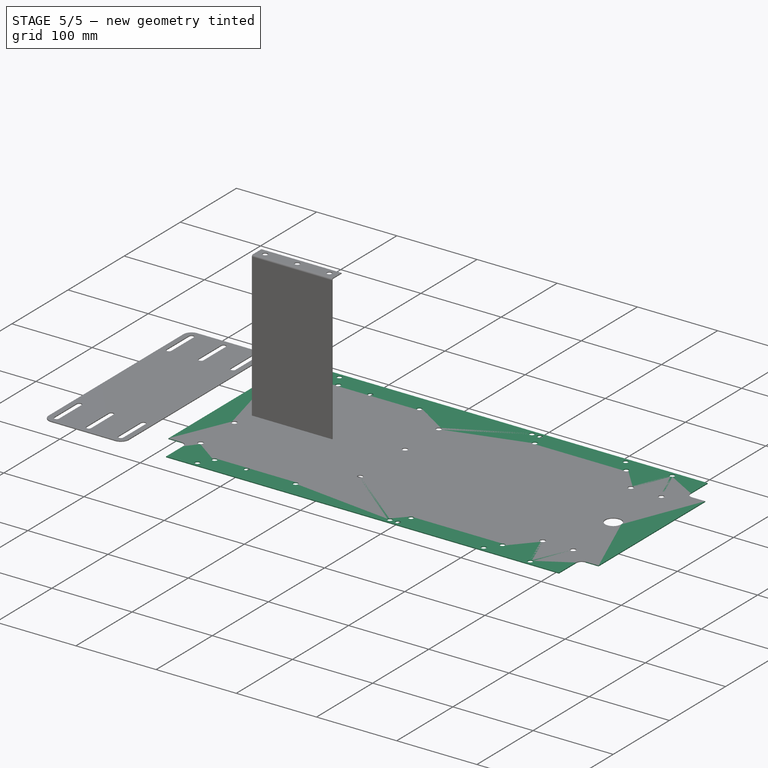
[diagram: stage 5 of 5 — iso view after this stage's code; geometry added in this stage tinted green]
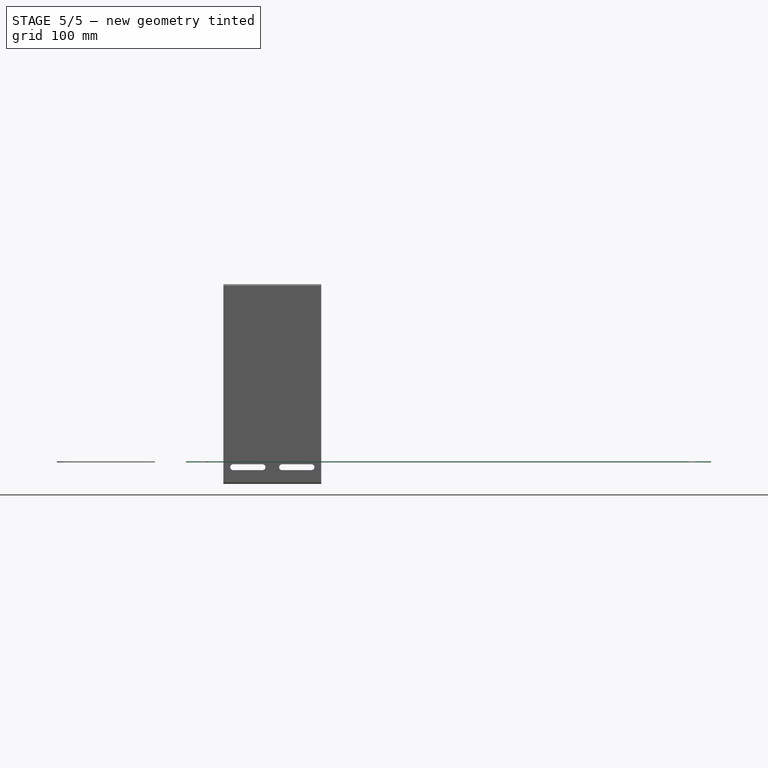
[diagram: stage 5 of 5 — front view after this stage's code; geometry added in this stage tinted green]
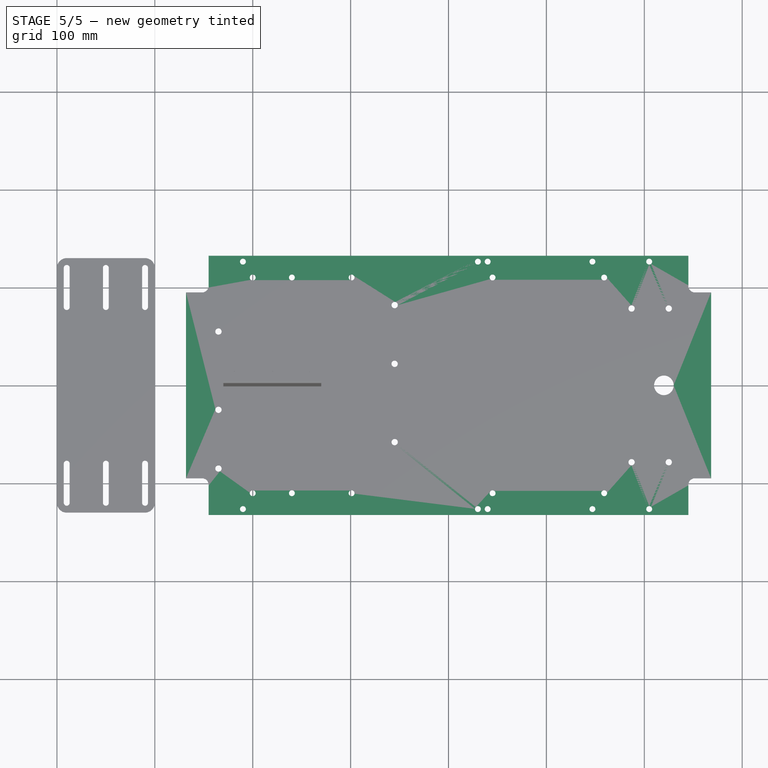
[diagram: stage 5 of 5 — top view after this stage's code; geometry added in this stage tinted green]
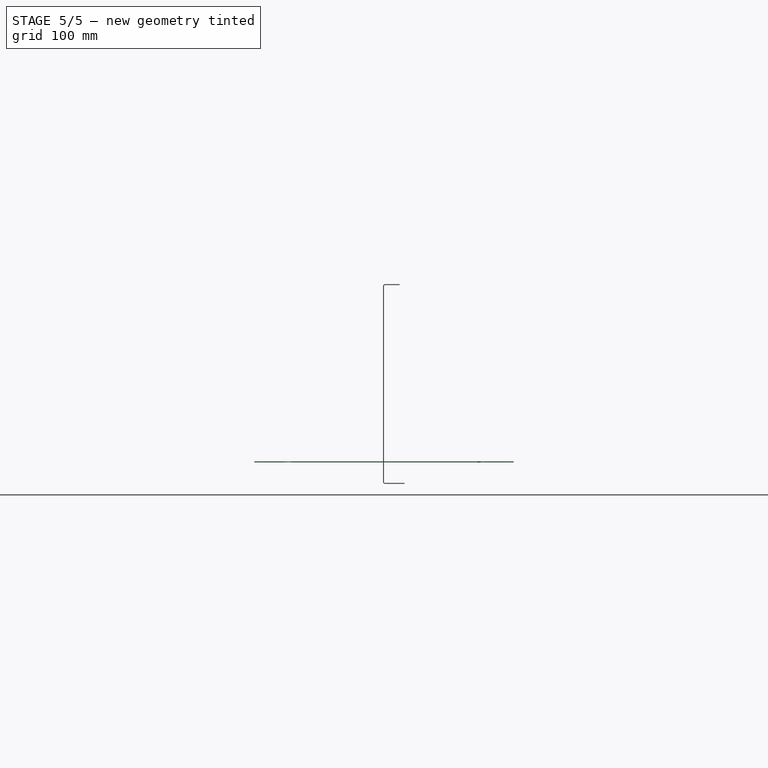
[diagram: stage 5 of 5 — right view after this stage's code; geometry added in this stage tinted green]
FEATURE [Sketcher::SketchObject] Sketch
  ArcFitTolerance = 1e-06
  AttachmentSupport = -> [Bend001]
  ExternalGeometry = -> [Bend001]
  FullyConstrained = true
  MakeInternals = false
  MapMode = 5
  Placement = pos=(0,0,-19) rot=(1,0,0;3.14159rad)
  sketch-geometry (11):
    g0: LineSegment [constr] StartX=-245 StartY=94 StartZ=0 EndX=245 EndY=94 EndZ=0
    g1: Circle CenterX=-210 CenterY=94 CenterZ=0 NormalX=0 NormalY=0 NormalZ=1 AngleXU=0 Radius=3
    g2: Circle CenterX=30 CenterY=94 CenterZ=0 NormalX=0 NormalY=0 NormalZ=1 AngleXU=0 Radius=3
    g3: Circle CenterX=205 CenterY=94 CenterZ=0 NormalX=0 NormalY=0 NormalZ=1 AngleXU=0 Radius=3
    g4: Circle CenterX=147 CenterY=94 CenterZ=0 NormalX=0 NormalY=0 NormalZ=1 AngleXU=0 Radius=3
    g5: Circle CenterX=40 CenterY=94 CenterZ=0 NormalX=0 NormalY=0 NormalZ=1 AngleXU=0 Radius=3
    g6: Circle CenterX=-210 CenterY=-94 CenterZ=0 NormalX=0 NormalY=0 NormalZ=1 AngleXU=0 Radius=3
    g7: Circle CenterX=30 CenterY=-94 CenterZ=0 NormalX=0 NormalY=0 NormalZ=1 AngleXU=0 Radius=3
    g8: Circle CenterX=205 CenterY=-94 CenterZ=0 NormalX=0 NormalY=0 NormalZ=1 AngleXU=0 Radius=3
    g9: Circle CenterX=147 CenterY=-94 CenterZ=0 NormalX=0 NormalY=0 NormalZ=1 AngleXU=0 Radius=3
    g10: Circle CenterX=40 CenterY=-94 CenterZ=0 NormalX=0 NormalY=0 NormalZ=1 AngleXU=0 Radius=3
  constraints (29):
    c: PointOnObject(g0,g-5)
    c: PointOnObject(g0,g-6)
    c: Horizontal(g0)
    c: PointOnObject(g1,g0)
    c: PointOnObject(g2,g0)
    c: PointOnObject(g3,g0)
    c: PointOnObject(g4,g0)
    c: PointOnObject(g5,g0)
    c: Equal(g1,g2)
    c: Equal(g2,g3)
    c: Equal(g3,g4)
    c: Equal(g4,g5)
    c: Diameter(g1) = 6
    c: DistanceX(g0,g1) = 35
    c: DistanceX(g0,g2) = 275
    c: DistanceX(g0,g5) = 285
    c: DistanceX(g0,g4) = 392
    c: DistanceX(g0,g3) = 450
    c: Equal(g1,g6)
    c: Symmetric(g1,g6,g-1)
    c: Equal(g2,g7)
    c: Symmetric(g2,g7,g-1)
    c: Equal(g3,g8)
    c: Symmetric(g3,g8,g-1)
    c: Equal(g4,g9)
    c: Symmetric(g4,g9,g-1)
    c: Equal(g5,g10)
    c: Symmetric(g5,g10,g-1)
    c: DistanceY(g-5,g0) = 6
FEATURE [PartDesign::Pocket] Pocket
  BaseFeature = -> Bend001
  Direction = (0,0,1)
  Length = 5
  Length2 = 5
  Profile = -> Sketch
  ReferenceAxis = -> Sketch [N_Axis]
  Refine = true
  Suppressed = false
  Type = 0
FEATURE [Sketcher::SketchObject] Sketch001
  ArcFitTolerance = 1e-06
  ExternalGeometry = -> [Pocket]
  FullyConstrained = true
  MakeInternals = false
  MapMode = 5
  Placement = pos=(0,-102,1.13e-14) rot=(1,0,0;1.5708rad)
  sketch-geometry (6):
    g0: LineSegment [constr] StartX=-245 StartY=-9 StartZ=0 EndX=245 EndY=-9 EndZ=0
    g1: Circle CenterX=-200 CenterY=-9 CenterZ=0 NormalX=0 NormalY=0 NormalZ=1 AngleXU=0 Radius=3
    g2: Circle CenterX=-160 CenterY=-9 CenterZ=0 NormalX=0 NormalY=0 NormalZ=1 AngleXU=0 Radius=3
    g3: Circle CenterX=-99 CenterY=-9 CenterZ=0 NormalX=0 NormalY=0 NormalZ=1 AngleXU=0 Radius=3
    g4: Circle CenterX=45 CenterY=-9 CenterZ=0 NormalX=0 NormalY=0 NormalZ=1 AngleXU=0 Radius=3
    g5: Circle CenterX=159 CenterY=-9 CenterZ=0 NormalX=0 NormalY=0 NormalZ=1 AngleXU=0 Radius=3
  constraints (19):
    c: PointOnObject(g0,g-3)
    c: PointOnObject(g0,g-6)
    c: Horizontal(g0)
    c: DistanceY(g-5,g0) = 8
    c: PointOnObject(g1,g0)
    c: PointOnObject(g2,g0)
    c: PointOnObject(g3,g0)
    c: PointOnObject(g4,g0)
    c: PointOnObject(g5,g0)
    c: Equal(g1,g2)
    c: Equal(g2,g3)
    c: Equal(g3,g4)
    c: Equal(g4,g5)
    c: Diameter(g1) = 6
    c: DistanceX(g0,g1) = 45
    c: DistanceX(g0,g2) = 85
    c: DistanceX(g0,g3) = 146
    c: DistanceX(g0,g4) = 290
    c: DistanceX(g0,g5) = 404
FEATURE [PartDesign::Pocket] Pocket001
  BaseFeature = -> Pocket
  Direction = (0,1,-2e-16)
  Length = 5
  Length2 = 5
  Profile = -> Sketch001
  ReferenceAxis = -> Sketch001 [N_Axis]
  Refine = true
  Suppressed = false
  Type = 1
FEATURE [Sketcher::SketchObject] Sketch002
  ArcFitTolerance = 1e-06
  AttachmentSupport = -> [Pocket001]
  ExternalGeometry = -> [Pocket001]
  FullyConstrained = true
  MakeInternals = false
  MapMode = 5
  Placement = pos=(0,0,1) rot=(0,0,1;0rad)
  sketch-geometry (27):
    g0: LineSegment [constr] StartX=-245 StartY=95 StartZ=0 EndX=-245 EndY=-95 EndZ=0
    g1: LineSegment [constr] StartX=-245 StartY=-95 StartZ=0 EndX=-8 EndY=-95 EndZ=0
    g2: LineSegment [constr] StartX=-8 StartY=-95 StartZ=0 EndX=-8 EndY=95 EndZ=0
    g3: LineSegment [constr] StartX=-8 StartY=95 StartZ=0 EndX=-245 EndY=95 EndZ=0
    g4: LineSegment [constr] StartX=-250 StartY=95 StartZ=0 EndX=-245 EndY=95 EndZ=0
    g5: LineSegment [constr] StartX=-245 StartY=100 StartZ=0 EndX=-245 EndY=95 EndZ=0
    g6: LineSegment [constr] StartX=22 StartY=72.5 StartZ=0 EndX=22 EndY=-72.5 EndZ=0
    g7: LineSegment [constr] StartX=22 StartY=-72.5 StartZ=0 EndX=229 EndY=-72.5 EndZ=0
    g8: LineSegment [constr] StartX=229 StartY=-72.5 StartZ=0 EndX=229 EndY=72.5 EndZ=0
    g9: LineSegment [constr] StartX=229 StartY=72.5 StartZ=0 EndX=22 EndY=72.5 EndZ=0
    g10: LineSegment [constr] StartX=-235 StartY=95 StartZ=0 EndX=-235 EndY=-95 EndZ=0
    g11: LineSegment [constr] StartX=-55 StartY=95 StartZ=0 EndX=-55 EndY=-95 EndZ=0
    g12: Circle CenterX=-235 CenterY=55 CenterZ=0 NormalX=0 NormalY=0 NormalZ=1 AngleXU=0 Radius=3.2
    g13: Circle CenterX=-235 CenterY=-25 CenterZ=0 NormalX=0 NormalY=0 NormalZ=1 AngleXU=0 Radius=3.2
    g14: Circle CenterX=-235 CenterY=-85 CenterZ=0 NormalX=0 NormalY=0 NormalZ=1 AngleXU=0 Radius=3.2
    g15: Circle CenterX=-55 CenterY=82 CenterZ=0 NormalX=0 NormalY=0 NormalZ=1 AngleXU=0 Radius=3.2
    g16: Circle CenterX=-55 CenterY=22 CenterZ=0 NormalX=0 NormalY=0 NormalZ=1 AngleXU=0 Radius=3.2
    g17: Circle CenterX=-55 CenterY=-58 CenterZ=0 NormalX=0 NormalY=0 NormalZ=1 AngleXU=0 Radius=3.2
    g18: LineSegment [constr] StartX=187 StartY=78.5 StartZ=0 EndX=187 EndY=-78.5 EndZ=0
    g19: LineSegment [constr] StartX=187 StartY=-78.5 StartZ=0 EndX=225 EndY=-78.5 EndZ=0
    g20: LineSegment [constr] StartX=225 StartY=-78.5 StartZ=0 EndX=225 EndY=78.5 EndZ=0
    g21: LineSegment [constr] StartX=225 StartY=78.5 StartZ=0 EndX=187 EndY=78.5 EndZ=0
    g22: Circle CenterX=187 CenterY=78.5 CenterZ=0 NormalX=0 NormalY=0 NormalZ=1 AngleXU=0 Radius=3.2
    g23: Circle CenterX=225 CenterY=78.5 CenterZ=0 NormalX=0 NormalY=0 NormalZ=1 AngleXU=0 Radius=3.2
    g24: Circle CenterX=187 CenterY=-78.5 CenterZ=0 NormalX=0 NormalY=0 NormalZ=1 AngleXU=0 Radius=3.2
    g25: Circle CenterX=225 CenterY=-78.5 CenterZ=0 NormalX=0 NormalY=0 NormalZ=1 AngleXU=0 Radius=3.2
    g26: Circle CenterX=220 CenterY=0 CenterZ=0 NormalX=0 NormalY=0 NormalZ=1 AngleXU=0 Radius=10
  constraints (74):
    c: Coincident(g0,g1)
    c: Coincident(g1,g2)
    c: Coincident(g2,g3)
    c: Coincident(g3,g0)
    c: Vertical(g2)
    c: Horizontal(g1)
    c: Horizontal(g3)
    c: DistanceY(g0,g0) = 190
    c: Symmetric(g0,g0,g-1)
    c: DistanceX(g1,g1) = 237
    c: Coincident(g4,g-4)
    c: Coincident(g4,g0)
    c: Coincident(g5,g-3)
    c: Coincident(g5,g0)
    c: Equal(g5,g4)
    c: Coincident(g6,g7)
    c: Coincident(g7,g8)
    c: Coincident(g8,g9)
    c: Coincident(g9,g6)
    c: Vertical(g8)
    c: Horizontal(g7)
    c: Horizontal(g9)
    c: DistanceX(g7,g7) = 207
    c: DistanceY(g8,g8) = 145
    c: Symmetric(g6,g6,g-1)
    c: DistanceX(g1,g6) = 30
    c: PointOnObject(g10,g3)
    c: PointOnObject(g10,g1)
    c: Vertical(g10)
    c: PointOnObject(g11,g3)
    c: PointOnObject(g11,g1)
    c: Vertical(g11)
    c: DistanceX(g0,g10) = 10
    c: PointOnObject(g12,g10)
    c: PointOnObject(g13,g10)
    c: PointOnObject(g14,g10)
    c: PointOnObject(g15,g11)
    c: PointOnObject(g16,g11)
    c: PointOnObject(g17,g11)
    c: Equal(g16,g17)
    c: Equal(g17,g15)
    c: Equal(g15,g12)
    c: Equal(g12,g13)
    c: Equal(g13,g14)
    c: Diameter(g12) = 6.4
    c: DistanceY(g14,g13) = 60
    c: DistanceY(g13,g12) = 80
    c: DistanceY(g16,g15) = 60
    c: DistanceY(g17,g16) = 80
    c: DistanceY(g10,g14) = 10
    c: DistanceY(g11,g17) = 37
    c: DistanceX(g10,g11) = 180
    c: Coincident(g18,g19)
    c: Coincident(g19,g20)
    c: Coincident(g20,g21)
    c: Coincident(g21,g18)
    c: Vertical(g18)
    c: Horizontal(g19)
    c: Horizontal(g21)
    c: Coincident(g22,g18)
    c: Coincident(g23,g20)
    c: Coincident(g24,g18)
    c: Coincident(g25,g19)
    c: Equal(g24,g25)
    c: Equal(g25,g23)
    c: Equal(g23,g22)
    c: Equal(g22,g12)
    c: Symmetric(g20,g19,g-1)
    c: DistanceY(g8,g20) = 6
    c: DistanceX(g6,g18) = 165
    c: DistanceX(g18,g19) = 38
    c: PointOnObject(g26,g-1)
    c: Diameter(g26) = 20
    c: DistanceX(g26,g-6) = 30
FEATURE [PartDesign::Pocket] Pocket002
  BaseFeature = -> Pocket001
  Direction = (0,0,-1)
  Length = 5
  Length2 = 5
  Profile = -> Sketch002
  ReferenceAxis = -> Sketch002 [N_Axis]
  Refine = true
  Suppressed = false
  Type = 0
FEATURE [PartDesign::Body] Body  label="Main Plate"
  AllowCompound = false
  Group = -> [BaseShape,Bend,CornerRelief,CornerRelief001,CornerRelief002,CornerRelief003,Bend001,Sketch,Pocket,Sketch001,Pocket001,Sketch002,Pocket002]
  Origin = -> Origin
  Tip = -> Pocket002
FEATURE [Part::FeaturePython] Body_Unfold  # WARN: FeaturePython — macro-defined, semantics opaque (R4)
  GenerateSketch = true
  KFactor = 0.4
  KFactorStandard = 0
  ManualRecompute = false
  MaterialSheet = _manual
  SeparateSketchLayers = true
  UnfoldSketches = Unfold_Sketch | Unfold_Sketch_Bends | Unfold_Sketch_Holes
  baseObject = -> Body [Pocket002.Face2]
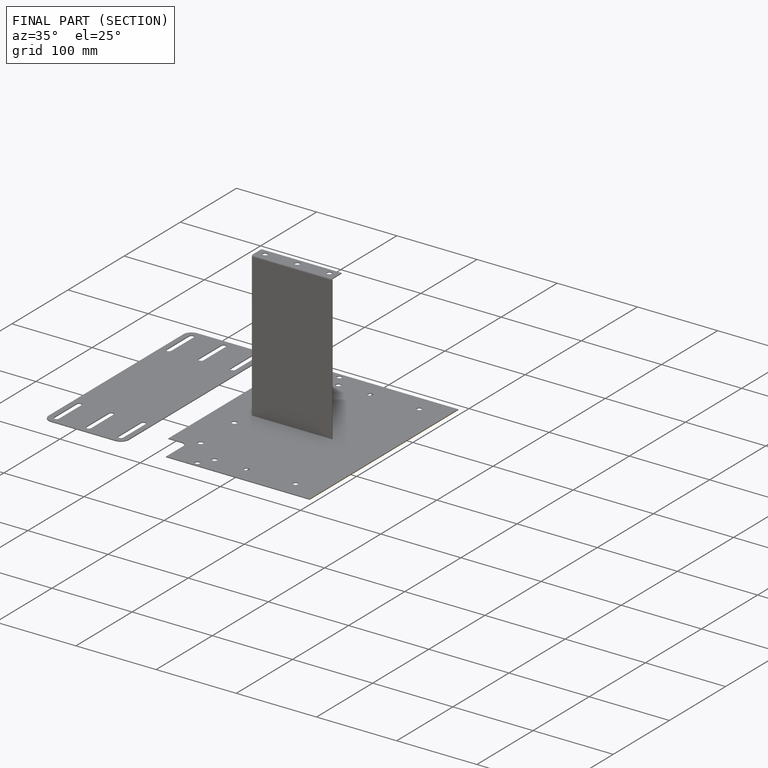
[diagram: finished part — half-section view (interior)]
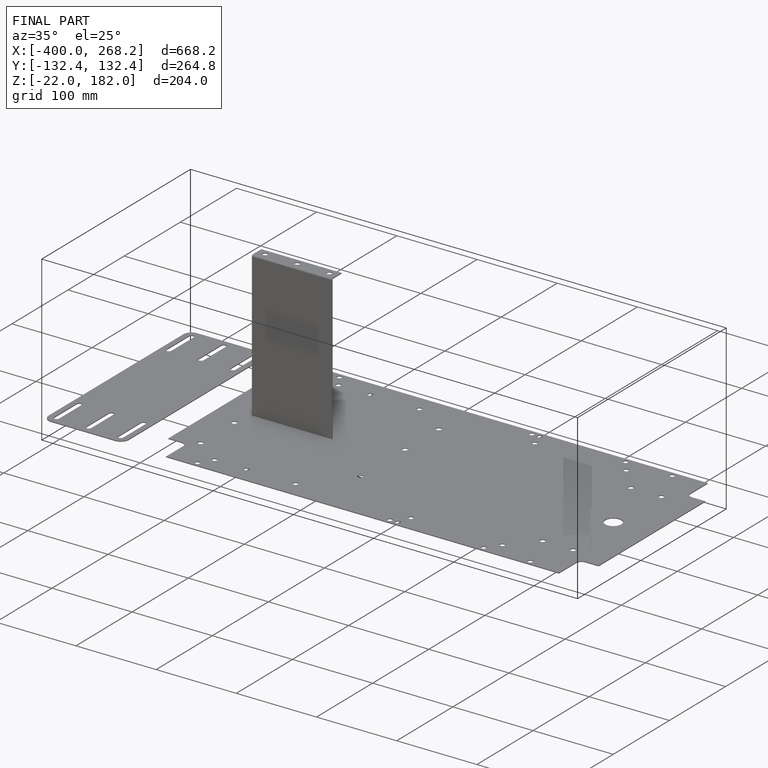
[diagram: finished part — iso view with bounding-box wireframe]
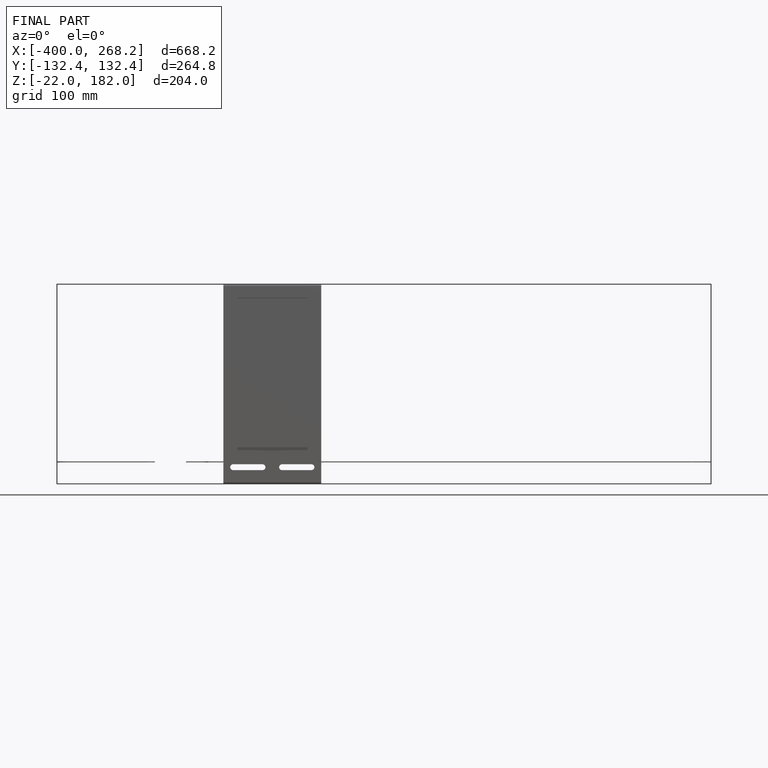
[diagram: finished part — front view with bounding-box wireframe]
